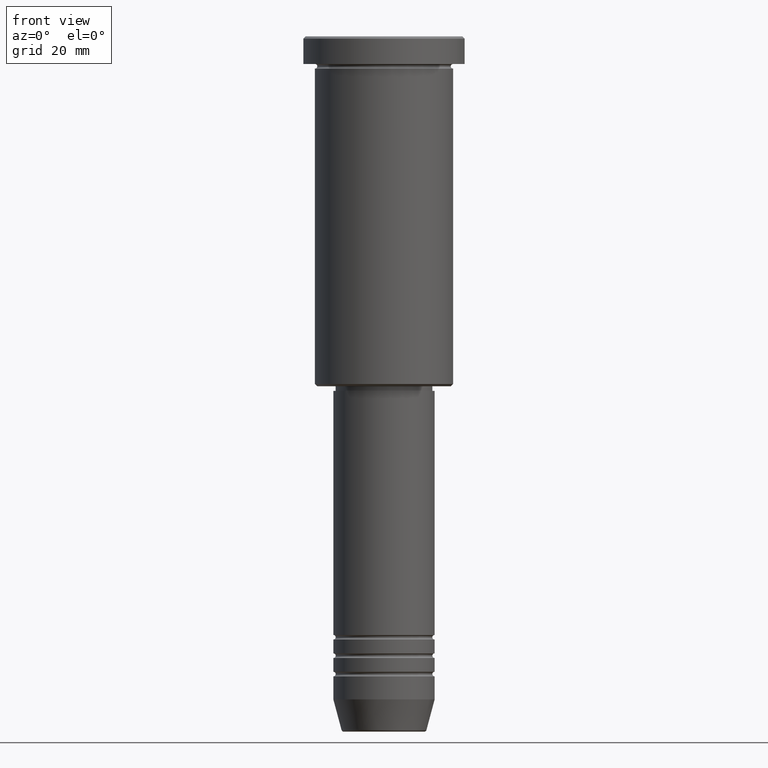
[diagram: clean part render]
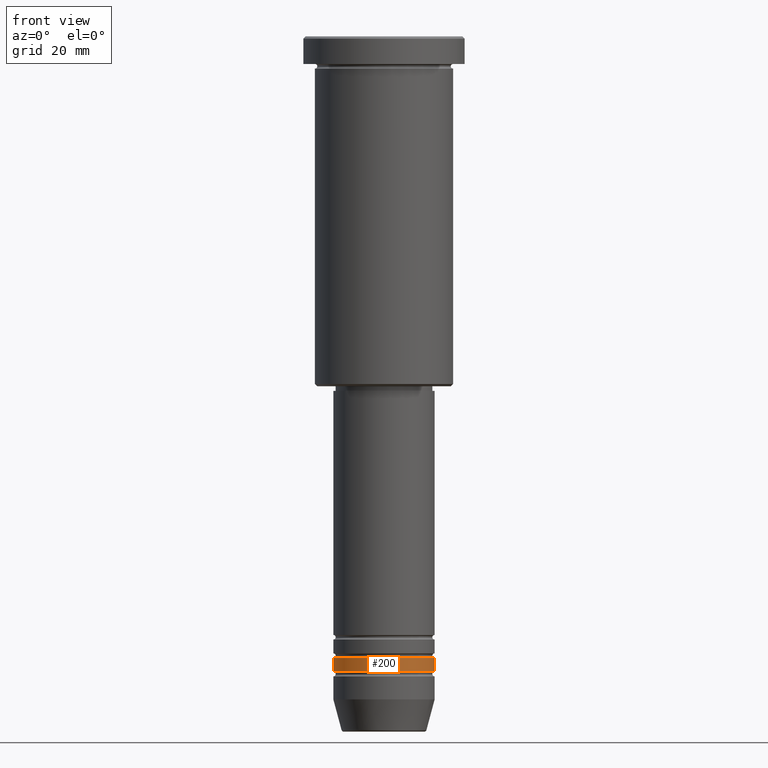
[diagram: same view with one face highlighted and labeled with its STEP entity id]
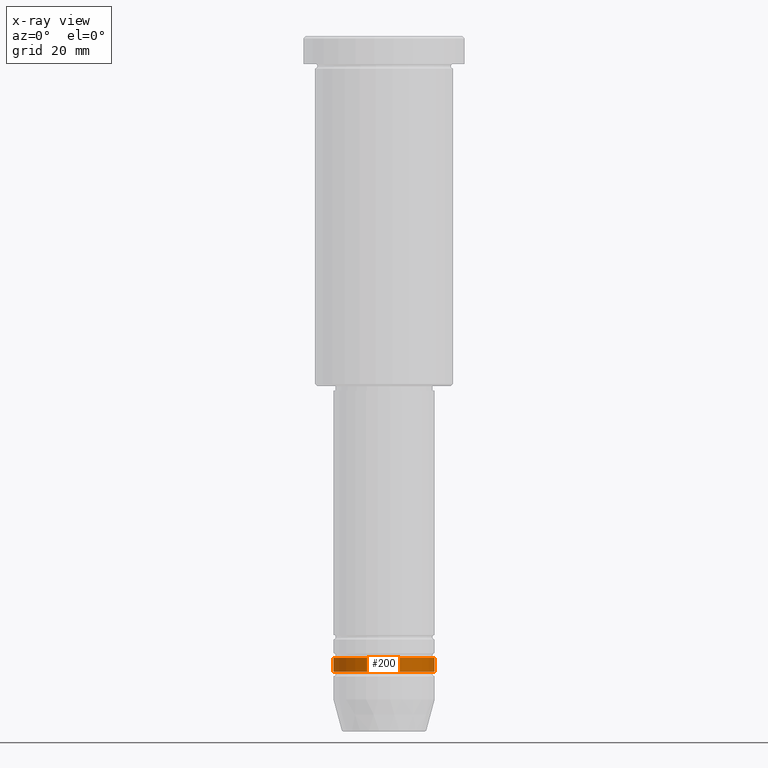
[diagram: x-ray of the same camera — body ghosted, the highlighted face saturated]
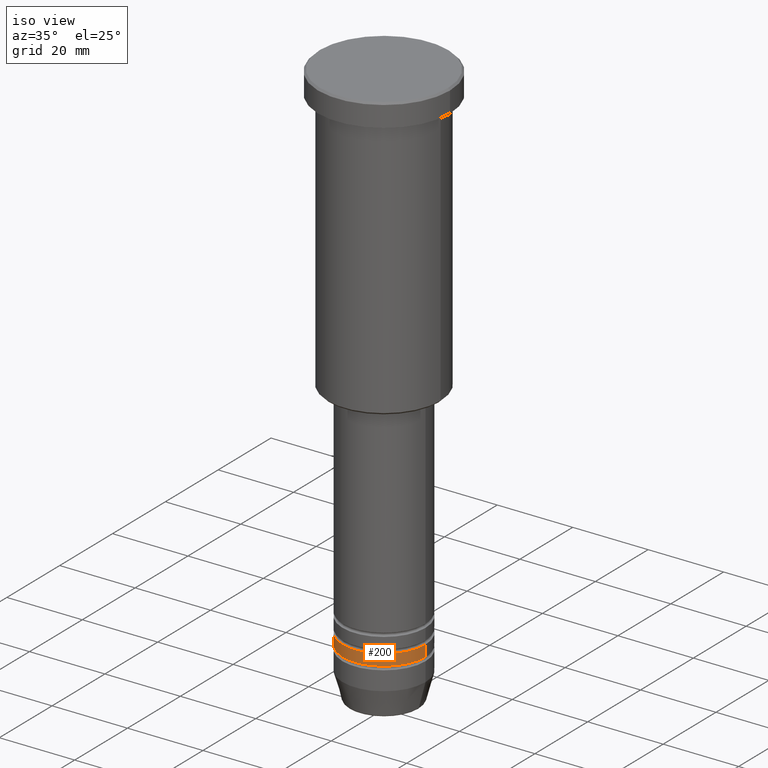
[diagram: same view with one face highlighted and labeled with its STEP entity id]
A machine part, front view. The second image highlights one B-rep face of the part: STEP entity #200.
The next image is the same camera in x-ray: the body ghosted, the highlighted face saturated — about 0% of this face is hidden behind the body in this view.
A second angle (iso view) of the same face is appended — the face is thin or edge-on in the first view.
In plain terms, the highlighted cylindrical surface (partial cylindrical patch) has radius 11 mm, axis along (-0, -0, 1).
Its self-contained STEP definition (entity closure, byte-faithful):
#1 = CARTESIAN_POINT ( 'NONE',  ( 11.00000000000000000, 0.000000000000000000, -137.9999999999998863 ) ) ;
#24 = VERTEX_POINT ( 'NONE', #1105 ) ;
#48 = DIRECTION ( 'NONE',  ( 1.000000000000000000, 0.000000000000000000, 0.000000000000000000 ) ) ;
#56 = CIRCLE ( 'NONE', #170, 11.00000000000000000 ) ;
#59 = CARTESIAN_POINT ( 'NONE',  ( 0.000000000000000000, 0.000000000000000000, -137.9999999999998863 ) ) ;
#81 = DIRECTION ( 'NONE',  ( -0.000000000000000000, -0.000000000000000000, 1.000000000000000000 ) ) ;
#92 = EDGE_CURVE ( 'NONE', #830, #636, #1144, .T. ) ;
#135 = DIRECTION ( 'NONE',  ( -0.000000000000000000, -0.000000000000000000, 1.000000000000000000 ) ) ;
#152 = EDGE_CURVE ( 'NONE', #1000, #24, #56, .T. ) ;
#170 = AXIS2_PLACEMENT_3D ( 'NONE', #445, #81, #449 ) ;
#184 = FACE_OUTER_BOUND ( 'NONE', #726, .T. ) ;
#200 = ADVANCED_FACE ( 'NONE', ( #184 ), #1073, .T. ) ;
#203 = CARTESIAN_POINT ( 'NONE',  ( -11.00000000000000000, 1.347111479062088405E-15, 0.000000000000000000 ) ) ;
#238 = EDGE_CURVE ( 'NONE', #636, #24, #371, .T. ) ;
#294 = CARTESIAN_POINT ( 'NONE',  ( -11.00000000000000000, 1.347111479062088405E-15, -134.9999999999998863 ) ) ;
#371 = LINE ( 'NONE', #720, #456 ) ;
#445 = CARTESIAN_POINT ( 'NONE',  ( 0.000000000000000000, 0.000000000000000000, -134.9999999999998863 ) ) ;
#447 = VECTOR ( 'NONE', #1021, 1000.000000000000000 ) ;
#449 = DIRECTION ( 'NONE',  ( 1.000000000000000000, 0.000000000000000000, 0.000000000000000000 ) ) ;
#456 = VECTOR ( 'NONE', #1092, 1000.000000000000000 ) ;
#465 = ORIENTED_EDGE ( 'NONE', *, *, #1005, .F. ) ;
#524 = AXIS2_PLACEMENT_3D ( 'NONE', #59, #135, #48 ) ;
#636 = VERTEX_POINT ( 'NONE', #1 ) ;
#705 = AXIS2_PLACEMENT_3D ( 'NONE', #978, #1174, #802 ) ;
#720 = CARTESIAN_POINT ( 'NONE',  ( 11.00000000000000000, 0.000000000000000000, 0.000000000000000000 ) ) ;
#726 = EDGE_LOOP ( 'NONE', ( #465, #907, #816, #783 ) ) ;
#783 = ORIENTED_EDGE ( 'NONE', *, *, #152, .F. ) ;
#802 = DIRECTION ( 'NONE',  ( 1.000000000000000000, 0.000000000000000000, 0.000000000000000000 ) ) ;
#816 = ORIENTED_EDGE ( 'NONE', *, *, #238, .T. ) ;
#830 = VERTEX_POINT ( 'NONE', #930 ) ;
#907 = ORIENTED_EDGE ( 'NONE', *, *, #92, .T. ) ;
#930 = CARTESIAN_POINT ( 'NONE',  ( -11.00000000000000000, 1.347111479062088405E-15, -137.9999999999998863 ) ) ;
#978 = CARTESIAN_POINT ( 'NONE',  ( 0.000000000000000000, 0.000000000000000000, 0.000000000000000000 ) ) ;
#1000 = VERTEX_POINT ( 'NONE', #294 ) ;
#1005 = EDGE_CURVE ( 'NONE', #830, #1000, #1017, .T. ) ;
#1017 = LINE ( 'NONE', #203, #447 ) ;
#1021 = DIRECTION ( 'NONE',  ( -0.000000000000000000, -0.000000000000000000, 1.000000000000000000 ) ) ;
#1073 = CYLINDRICAL_SURFACE ( 'NONE', #705, 11.00000000000000000 ) ;
#1092 = DIRECTION ( 'NONE',  ( -0.000000000000000000, -0.000000000000000000, 1.000000000000000000 ) ) ;
#1105 = CARTESIAN_POINT ( 'NONE',  ( 11.00000000000000000, 0.000000000000000000, -134.9999999999998863 ) ) ;
#1144 = CIRCLE ( 'NONE', #524, 11.00000000000000000 ) ;
#1174 = DIRECTION ( 'NONE',  ( -0.000000000000000000, -0.000000000000000000, 1.000000000000000000 ) ) ;